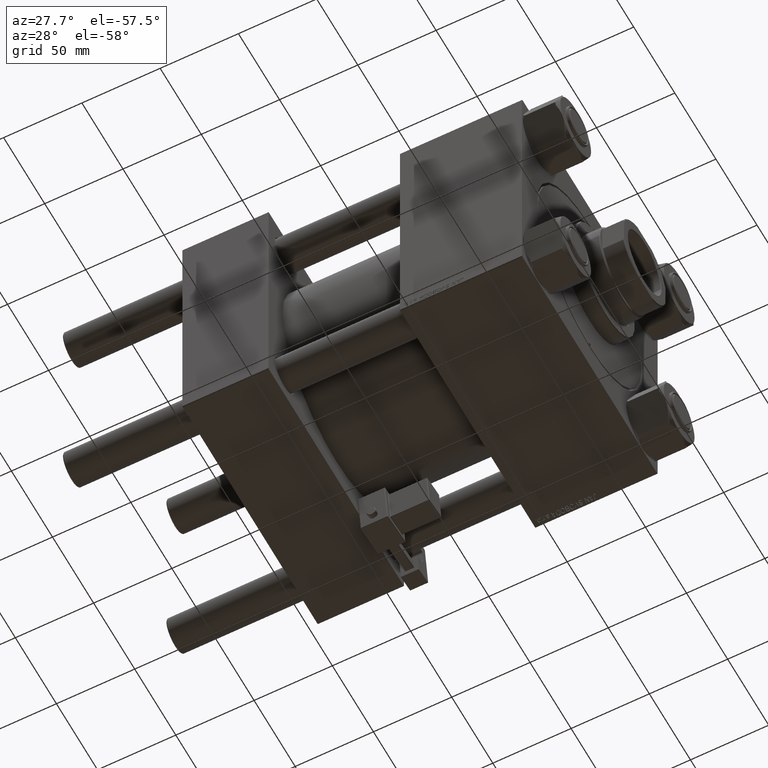
[diagram: clean part render]
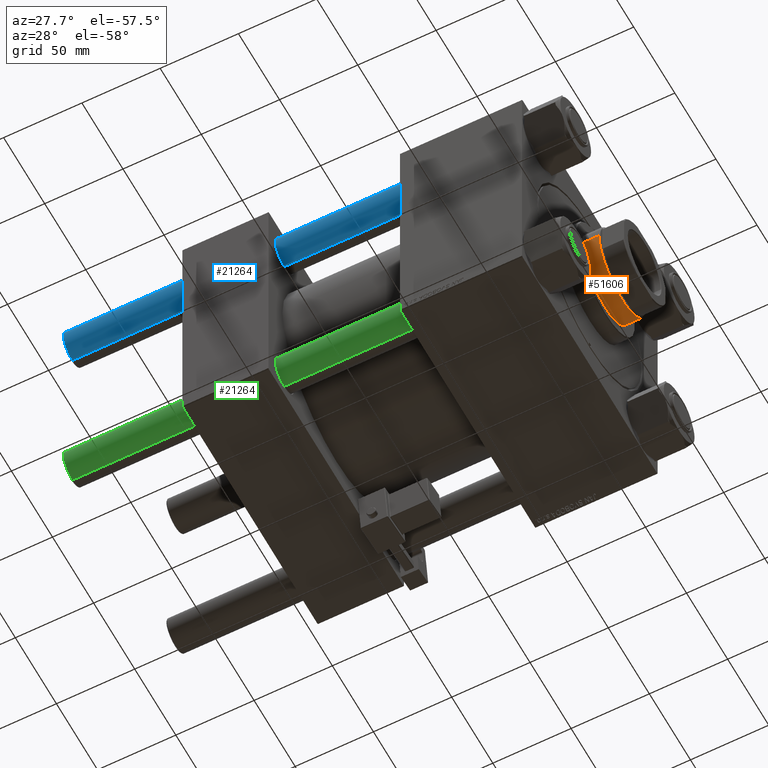
[diagram: same view with three faces highlighted in distinct colors, each labeled with its STEP entity id]
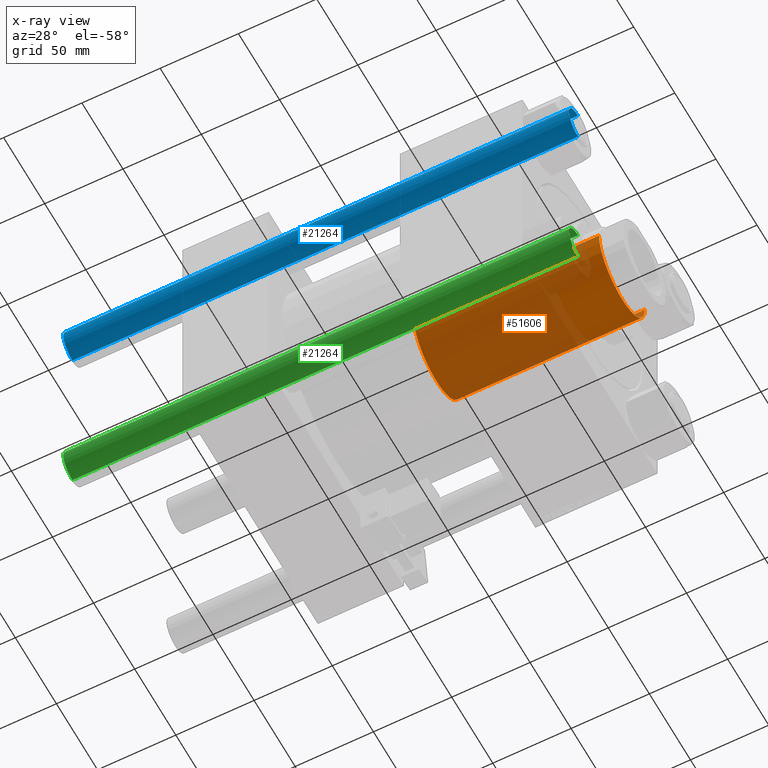
[diagram: x-ray of the same camera — body ghosted, the three highlighted faces saturated]
A machine part, auxiliary view with three faces highlighted in distinct colors.
The next image is the same camera in x-ray (body ghosted, the three faces saturated) — at least one of them is partly hidden behind the body in this view.
Their STEP definitions:

[orange] entity #51606 — the highlighted cylindrical surface (partial cylindrical patch) has radius 28 mm, axis along (-1, 0, 0).
#416 = ORIENTED_EDGE ( 'NONE', *, *, #46603, .T. ) ;
#741 = EDGE_LOOP ( 'NONE', ( #416, #29356, #40565, #34867 ) ) ;
#1530 = EDGE_CURVE ( 'NONE', #15152, #49165, #43183, .T. ) ;
#2772 = DIRECTION ( 'NONE',  ( -0.000000000000000000, -0.000000000000000000, -1.000000000000000000 ) ) ;
#3584 = AXIS2_PLACEMENT_3D ( 'NONE', #52133, #15695, #31926 ) ;
#4692 = CIRCLE ( 'NONE', #14036, 28.00000000000000000 ) ;
#5472 = CARTESIAN_POINT ( 'NONE',  ( -28.00000000000000000, 0.000000000000000000, 182.4999999999999716 ) ) ;
#7239 = CARTESIAN_POINT ( 'NONE',  ( 28.00000000000000000, 3.429011037612589276E-15, 183.0000000000000000 ) ) ;
#8706 = DIRECTION ( 'NONE',  ( 1.000000000000000000, 0.000000000000000000, 0.000000000000000000 ) ) ;
#10661 = DIRECTION ( 'NONE',  ( 0.000000000000000000, 0.000000000000000000, 1.000000000000000000 ) ) ;
#12702 = DIRECTION ( 'NONE',  ( 0.000000000000000000, 0.000000000000000000, -1.000000000000000000 ) ) ;
#14036 = AXIS2_PLACEMENT_3D ( 'NONE', #19454, #10661, #18935 ) ;
#15152 = VERTEX_POINT ( 'NONE', #40433 ) ;
#15695 = DIRECTION ( 'NONE',  ( -0.000000000000000000, -0.000000000000000000, -1.000000000000000000 ) ) ;
#18935 = DIRECTION ( 'NONE',  ( 1.000000000000000000, 0.000000000000000000, 0.000000000000000000 ) ) ;
#19454 = CARTESIAN_POINT ( 'NONE',  ( 0.000000000000000000, 0.000000000000000000, 64.00000000000000000 ) ) ;
#19707 = FACE_OUTER_BOUND ( 'NONE', #741, .T. ) ;
#20407 = EDGE_CURVE ( 'NONE', #49165, #36556, #4692, .T. ) ;
#25803 = CARTESIAN_POINT ( 'NONE',  ( 28.00000000000000000, 3.429011037612589276E-15, 64.00000000000000000 ) ) ;
#29356 = ORIENTED_EDGE ( 'NONE', *, *, #1530, .T. ) ;
#30477 = VERTEX_POINT ( 'NONE', #5472 ) ;
#30690 = VECTOR ( 'NONE', #2772, 1000.000000000000000 ) ;
#30995 = CARTESIAN_POINT ( 'NONE',  ( -28.00000000000000000, 0.000000000000000000, 183.0000000000000000 ) ) ;
#31926 = DIRECTION ( 'NONE',  ( -1.000000000000000000, 0.000000000000000000, 0.000000000000000000 ) ) ;
#34867 = ORIENTED_EDGE ( 'NONE', *, *, #37408, .F. ) ;
#35920 = CYLINDRICAL_SURFACE ( 'NONE', #3584, 28.00000000000000000 ) ;
#36519 = CIRCLE ( 'NONE', #42450, 28.00000000000000000 ) ;
#36556 = VERTEX_POINT ( 'NONE', #46234 ) ;
#37408 = EDGE_CURVE ( 'NONE', #30477, #36556, #39238, .T. ) ;
#39238 = LINE ( 'NONE', #30995, #30690 ) ;
#40433 = CARTESIAN_POINT ( 'NONE',  ( 28.00000000000000000, 3.429011037612589276E-15, 182.4999999999999716 ) ) ;
#40565 = ORIENTED_EDGE ( 'NONE', *, *, #20407, .T. ) ;
#40921 = CARTESIAN_POINT ( 'NONE',  ( 0.000000000000000000, 0.000000000000000000, 182.4999999999999716 ) ) ;
#42450 = AXIS2_PLACEMENT_3D ( 'NONE', #40921, #12702, #8706 ) ;
#43183 = LINE ( 'NONE', #7239, #50796 ) ;
#46234 = CARTESIAN_POINT ( 'NONE',  ( -28.00000000000000000, 0.000000000000000000, 64.00000000000000000 ) ) ;
#46603 = EDGE_CURVE ( 'NONE', #30477, #15152, #36519, .T. ) ;
#47167 = DIRECTION ( 'NONE',  ( -0.000000000000000000, -0.000000000000000000, -1.000000000000000000 ) ) ;
#49165 = VERTEX_POINT ( 'NONE', #25803 ) ;
#50796 = VECTOR ( 'NONE', #47167, 1000.000000000000000 ) ;
#51606 = ADVANCED_FACE ( 'NONE', ( #19707 ), #35920, .T. ) ;
#52133 = CARTESIAN_POINT ( 'NONE',  ( 0.000000000000000000, 0.000000000000000000, 183.0000000000000000 ) ) ;

[blue] entity #21264 — the highlighted cylindrical surface (edge-blend (fillet) strip) has radius 11 mm, axis along (1, -0, 0).
#455 = EDGE_LOOP ( 'NONE', ( #38682, #25444, #51662, #10504 ) ) ;
#1880 = AXIS2_PLACEMENT_3D ( 'NONE', #7959, #27700, #28218 ) ;
#2475 = VERTEX_POINT ( 'NONE', #42148 ) ;
#2532 = CARTESIAN_POINT ( 'NONE',  ( 0.000000000000000000, 0.000000000000000000, 323.5000000000000000 ) ) ;
#4592 = DIRECTION ( 'NONE',  ( -0.000000000000000000, -0.000000000000000000, -1.000000000000000000 ) ) ;
#5920 = VERTEX_POINT ( 'NONE', #7485 ) ;
#6966 = CIRCLE ( 'NONE', #1880, 11.00000000000000000 ) ;
#7485 = CARTESIAN_POINT ( 'NONE',  ( 11.00000000000000000, 1.347111479062088405E-15, 0.5000000000000559552 ) ) ;
#7959 = CARTESIAN_POINT ( 'NONE',  ( 0.000000000000000000, 0.000000000000000000, 0.5000000000000559552 ) ) ;
#9893 = CIRCLE ( 'NONE', #12461, 11.00000000000000000 ) ;
#10504 = ORIENTED_EDGE ( 'NONE', *, *, #40857, .F. ) ;
#10673 = FACE_OUTER_BOUND ( 'NONE', #455, .T. ) ;
#12461 = AXIS2_PLACEMENT_3D ( 'NONE', #2532, #18776, #16593 ) ;
#13537 = EDGE_CURVE ( 'NONE', #24327, #5920, #23147, .T. ) ;
#16593 = DIRECTION ( 'NONE',  ( 1.000000000000000000, 0.000000000000000000, 0.000000000000000000 ) ) ;
#18776 = DIRECTION ( 'NONE',  ( 0.000000000000000000, 0.000000000000000000, -1.000000000000000000 ) ) ;
#21264 = ADVANCED_FACE ( 'NONE', ( #10673 ), #43138, .T. ) ;
#23147 = LINE ( 'NONE', #23654, #40142 ) ;
#23456 = AXIS2_PLACEMENT_3D ( 'NONE', #43671, #26943, #51115 ) ;
#23654 = CARTESIAN_POINT ( 'NONE',  ( 11.00000000000000000, 1.347111479062088405E-15, 324.0000000000000000 ) ) ;
#23844 = EDGE_CURVE ( 'NONE', #2475, #24327, #9893, .T. ) ;
#24327 = VERTEX_POINT ( 'NONE', #46572 ) ;
#25031 = CARTESIAN_POINT ( 'NONE',  ( -11.00000000000000000, 0.000000000000000000, 0.5000000000000559552 ) ) ;
#25444 = ORIENTED_EDGE ( 'NONE', *, *, #13537, .T. ) ;
#26943 = DIRECTION ( 'NONE',  ( -0.000000000000000000, -0.000000000000000000, -1.000000000000000000 ) ) ;
#27700 = DIRECTION ( 'NONE',  ( -0.000000000000000000, -0.000000000000000000, 1.000000000000000000 ) ) ;
#28218 = DIRECTION ( 'NONE',  ( 1.000000000000000000, 0.000000000000000000, 0.000000000000000000 ) ) ;
#28551 = CARTESIAN_POINT ( 'NONE',  ( -11.00000000000000000, 0.000000000000000000, 324.0000000000000000 ) ) ;
#34144 = VERTEX_POINT ( 'NONE', #25031 ) ;
#38682 = ORIENTED_EDGE ( 'NONE', *, *, #23844, .T. ) ;
#40142 = VECTOR ( 'NONE', #43598, 1000.000000000000000 ) ;
#40507 = LINE ( 'NONE', #28551, #40654 ) ;
#40654 = VECTOR ( 'NONE', #4592, 1000.000000000000000 ) ;
#40857 = EDGE_CURVE ( 'NONE', #2475, #34144, #40507, .T. ) ;
#42148 = CARTESIAN_POINT ( 'NONE',  ( -11.00000000000000000, 0.000000000000000000, 323.5000000000000000 ) ) ;
#43138 = CYLINDRICAL_SURFACE ( 'NONE', #23456, 11.00000000000000000 ) ;
#43598 = DIRECTION ( 'NONE',  ( -0.000000000000000000, -0.000000000000000000, -1.000000000000000000 ) ) ;
#43671 = CARTESIAN_POINT ( 'NONE',  ( 0.000000000000000000, 0.000000000000000000, 324.0000000000000000 ) ) ;
#46572 = CARTESIAN_POINT ( 'NONE',  ( 11.00000000000000000, 1.347111479062088405E-15, 323.5000000000000000 ) ) ;
#51115 = DIRECTION ( 'NONE',  ( -1.000000000000000000, 0.000000000000000000, 0.000000000000000000 ) ) ;
#51565 = EDGE_CURVE ( 'NONE', #5920, #34144, #6966, .T. ) ;
#51662 = ORIENTED_EDGE ( 'NONE', *, *, #51565, .T. ) ;

[green] entity #21264 — the highlighted cylindrical surface (edge-blend (fillet) strip) has radius 11 mm, axis along (-1, 0, 0).
#455 = EDGE_LOOP ( 'NONE', ( #38682, #25444, #51662, #10504 ) ) ;
#1880 = AXIS2_PLACEMENT_3D ( 'NONE', #7959, #27700, #28218 ) ;
#2475 = VERTEX_POINT ( 'NONE', #42148 ) ;
#2532 = CARTESIAN_POINT ( 'NONE',  ( 0.000000000000000000, 0.000000000000000000, 323.5000000000000000 ) ) ;
#4592 = DIRECTION ( 'NONE',  ( -0.000000000000000000, -0.000000000000000000, -1.000000000000000000 ) ) ;
#5920 = VERTEX_POINT ( 'NONE', #7485 ) ;
#6966 = CIRCLE ( 'NONE', #1880, 11.00000000000000000 ) ;
#7485 = CARTESIAN_POINT ( 'NONE',  ( 11.00000000000000000, 1.347111479062088405E-15, 0.5000000000000559552 ) ) ;
#7959 = CARTESIAN_POINT ( 'NONE',  ( 0.000000000000000000, 0.000000000000000000, 0.5000000000000559552 ) ) ;
#9893 = CIRCLE ( 'NONE', #12461, 11.00000000000000000 ) ;
#10504 = ORIENTED_EDGE ( 'NONE', *, *, #40857, .F. ) ;
#10673 = FACE_OUTER_BOUND ( 'NONE', #455, .T. ) ;
#12461 = AXIS2_PLACEMENT_3D ( 'NONE', #2532, #18776, #16593 ) ;
#13537 = EDGE_CURVE ( 'NONE', #24327, #5920, #23147, .T. ) ;
#16593 = DIRECTION ( 'NONE',  ( 1.000000000000000000, 0.000000000000000000, 0.000000000000000000 ) ) ;
#18776 = DIRECTION ( 'NONE',  ( 0.000000000000000000, 0.000000000000000000, -1.000000000000000000 ) ) ;
#21264 = ADVANCED_FACE ( 'NONE', ( #10673 ), #43138, .T. ) ;
#23147 = LINE ( 'NONE', #23654, #40142 ) ;
#23456 = AXIS2_PLACEMENT_3D ( 'NONE', #43671, #26943, #51115 ) ;
#23654 = CARTESIAN_POINT ( 'NONE',  ( 11.00000000000000000, 1.347111479062088405E-15, 324.0000000000000000 ) ) ;
#23844 = EDGE_CURVE ( 'NONE', #2475, #24327, #9893, .T. ) ;
#24327 = VERTEX_POINT ( 'NONE', #46572 ) ;
#25031 = CARTESIAN_POINT ( 'NONE',  ( -11.00000000000000000, 0.000000000000000000, 0.5000000000000559552 ) ) ;
#25444 = ORIENTED_EDGE ( 'NONE', *, *, #13537, .T. ) ;
#26943 = DIRECTION ( 'NONE',  ( -0.000000000000000000, -0.000000000000000000, -1.000000000000000000 ) ) ;
#27700 = DIRECTION ( 'NONE',  ( -0.000000000000000000, -0.000000000000000000, 1.000000000000000000 ) ) ;
#28218 = DIRECTION ( 'NONE',  ( 1.000000000000000000, 0.000000000000000000, 0.000000000000000000 ) ) ;
#28551 = CARTESIAN_POINT ( 'NONE',  ( -11.00000000000000000, 0.000000000000000000, 324.0000000000000000 ) ) ;
#34144 = VERTEX_POINT ( 'NONE', #25031 ) ;
#38682 = ORIENTED_EDGE ( 'NONE', *, *, #23844, .T. ) ;
#40142 = VECTOR ( 'NONE', #43598, 1000.000000000000000 ) ;
#40507 = LINE ( 'NONE', #28551, #40654 ) ;
#40654 = VECTOR ( 'NONE', #4592, 1000.000000000000000 ) ;
#40857 = EDGE_CURVE ( 'NONE', #2475, #34144, #40507, .T. ) ;
#42148 = CARTESIAN_POINT ( 'NONE',  ( -11.00000000000000000, 0.000000000000000000, 323.5000000000000000 ) ) ;
#43138 = CYLINDRICAL_SURFACE ( 'NONE', #23456, 11.00000000000000000 ) ;
#43598 = DIRECTION ( 'NONE',  ( -0.000000000000000000, -0.000000000000000000, -1.000000000000000000 ) ) ;
#43671 = CARTESIAN_POINT ( 'NONE',  ( 0.000000000000000000, 0.000000000000000000, 324.0000000000000000 ) ) ;
#46572 = CARTESIAN_POINT ( 'NONE',  ( 11.00000000000000000, 1.347111479062088405E-15, 323.5000000000000000 ) ) ;
#51115 = DIRECTION ( 'NONE',  ( -1.000000000000000000, 0.000000000000000000, 0.000000000000000000 ) ) ;
#51565 = EDGE_CURVE ( 'NONE', #5920, #34144, #6966, .T. ) ;
#51662 = ORIENTED_EDGE ( 'NONE', *, *, #51565, .T. ) ;